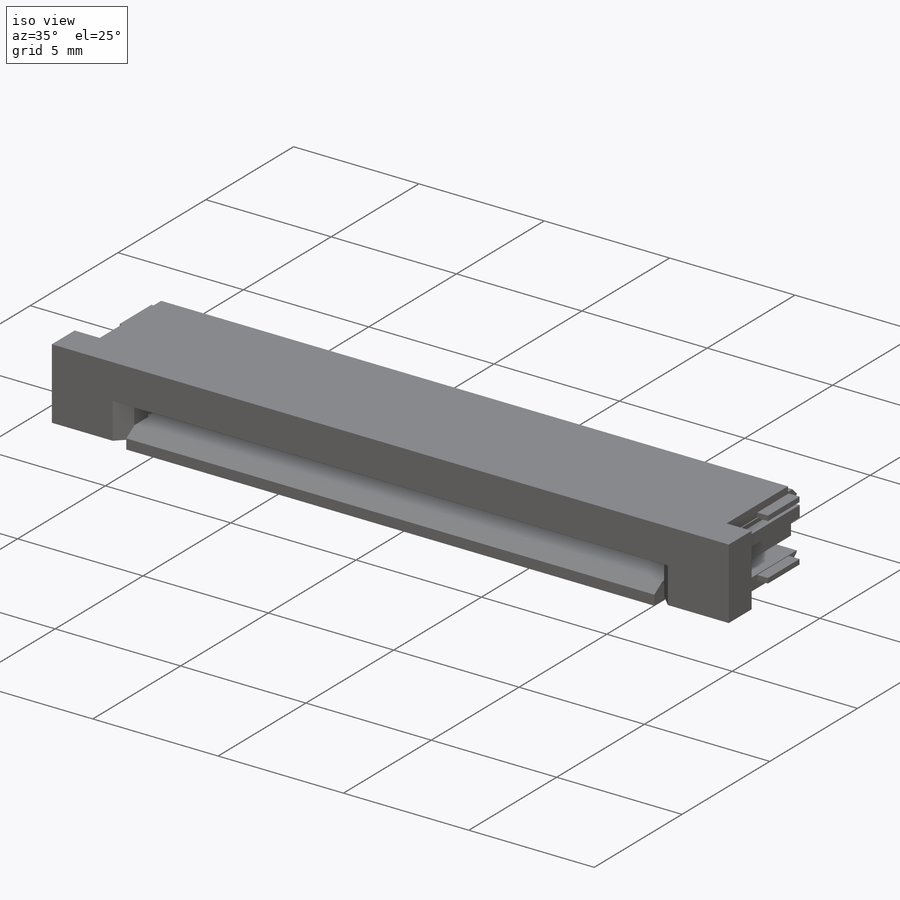
[diagram: iso view]
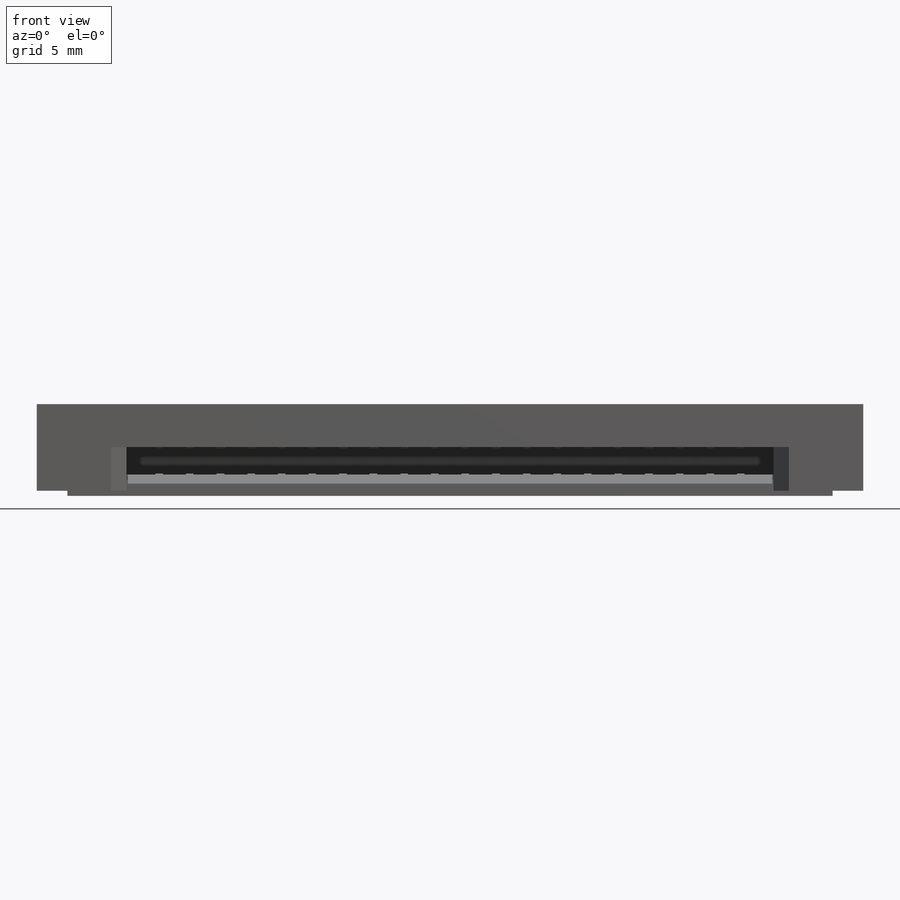
[diagram: front view]
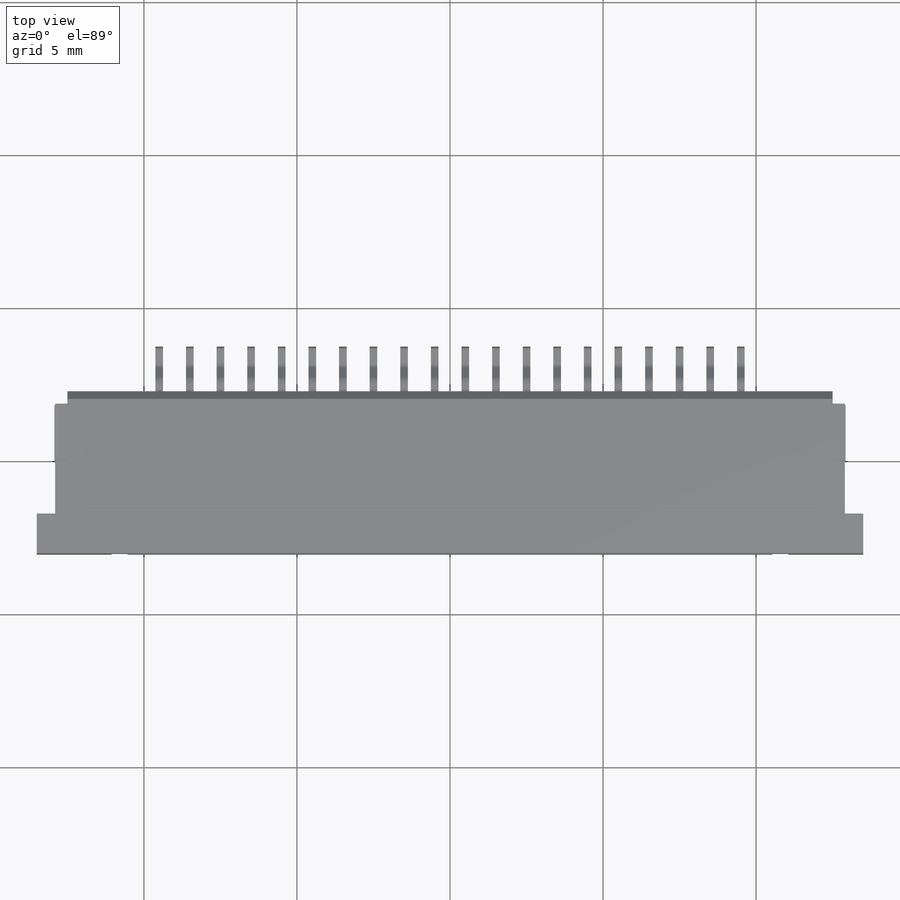
[diagram: top view]
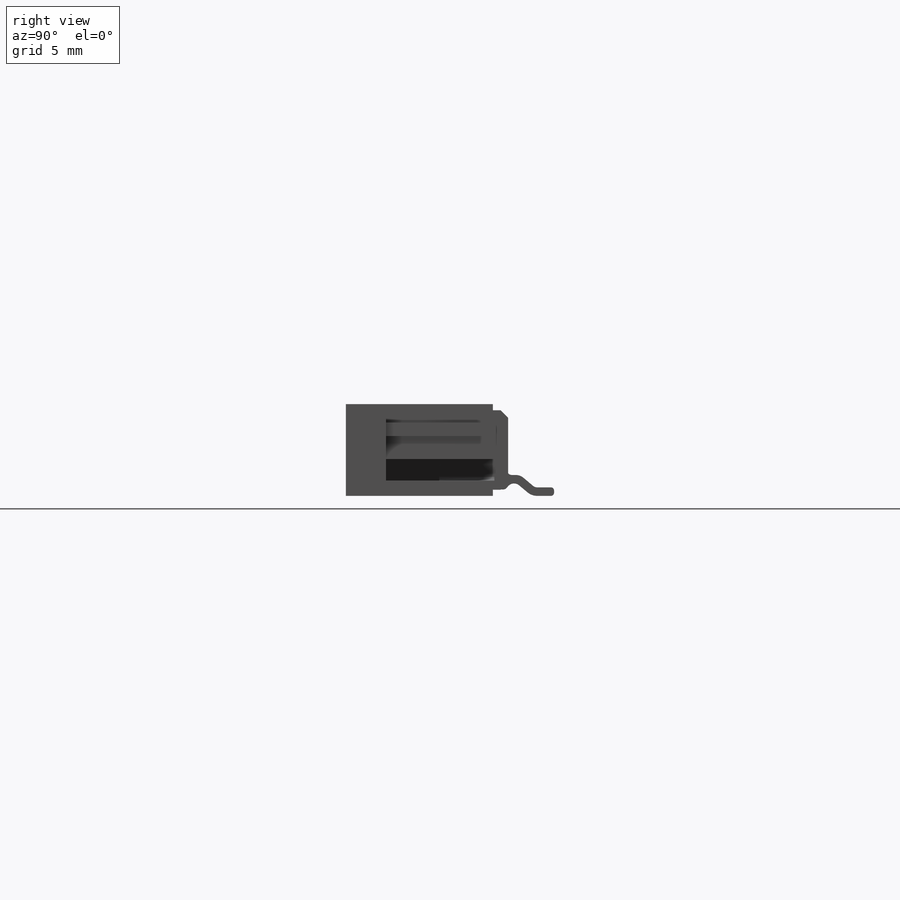
[diagram: right view]
SOLIDWORKS PART (.sldprt)
format: sldprt  version: not decoded by parser v0  size: 1,010,176 bytes
history: native  units: mm
features: sketch x9, extrude x6, plane x3, cut_extrude x3, chamfer x3, material x1, pattern_linear x1 (+12 scaffold rows collapsed)
feature tree (38):
  scaffold x12  (default folders/planes/origin — collapsed)
  material  "policarbonato"
  plane  "Side"
  sketch  "Sketch1"  dims[c1.D1=0.25mm c2.D1=45.0deg c2.D2=0.25mm c3.D2=45.0deg c3.D3=3.5mm c3.D4=0.25mm c3.D5=3.5mm c4.D5=270.0deg c5.D5=0.5mm c5.D6=0.2mm c5.D7=4.8mm c5.D8=0.45mm c6.D8=~32.735226deg c6.D9=0.6mm c6.D10=1.3mm c6.D7=1.3mm c7.D10=3.0mm c7.D11=0.7mm c7.D12=0.2mm c7.D13=0.25mm c8.D11=0.4mm]
  extrude  "Base"  Depth=25mm
  sketch  "Sketch2"  dims[D1=0.7mm D2=0.75mm D3=1.9mm D4=1.9mm]
  cut_extrude  "Card Slot"  Depth=3.8mm
  sketch  "Sketch4"  dims[D1=0.5mm D2=0.5mm D3=1.775mm]
  cut_extrude  "Wings"  [1 undecoded]
  sketch  "Sketch5"  dims[D1=1.97mm]
  cut_extrude  "Front Lead In"  [1 undecoded]
  chamfer  "Card Slot Lead In"  Distance=0.1mm Angle=60deg
  plane  "POS 1 Plane"  Offset=3mm
  plane  "WT Plane"  Offset=1.75mm
  sketch  "Sketch8"  dims[D1=0.425mm D2=0.425mm D3=0.275mm]
  extrude  "WT"  Depth=1.8mm
  sketch  "Sketch9"  dims[D1=0.1mm D2=2.83mm D3=2.93mm D4=0.575mm D5=0.17mm]
  extrude  "Gate"  Depth=1.3mm
  extrude  "Gate Chamfer"  Depth=0.5mm
  sketch  "Sketch10"  dims[c1.D1=0.6mm c1.D2=0.53mm c2.D1=0.6mm c2.D2=0.53mm c2.D3=0.95mm c3.D2=1.05mm c3.D1=1.35mm c4.D2=0.65mm c4.D3=0.35mm c4.D4=0.45mm c4.D5=0.35mm c4.D6=~0.74506mm c4.D7=0.55mm c4.D8=~0.09815mm c4.D9=0.375mm c4.D10=~0.432513mm c4.D11=~0.144338mm c4.D12=0.275mm c4.D13=0.6745mm c4.D14=1.35mm c5.D10=0.6mm c5.D11=0.45mm]
  extrude  "Gate Guide"  Depth=3.6mm
  sketch  "Sketch6"
  chamfer  "Block4"  Distance=0.03mm
  sketch  "Sketch13"
  chamfer  "Block1"  Distance=0.002984mm
  extrude  "-01 Contact"  Depth=0.25mm
  pattern_linear  "LPattern3"  Count1=20 Count2=1 Spacing1=1mm Spacing2=1mm
decode coverage: 18 of 22 modeling features carry decoded parameters
note: ~ marks probable driven/reference dimensions
note: 2 parameter values undecoded
note: suppression state not decoded; provenance and decode notes live in map.json
